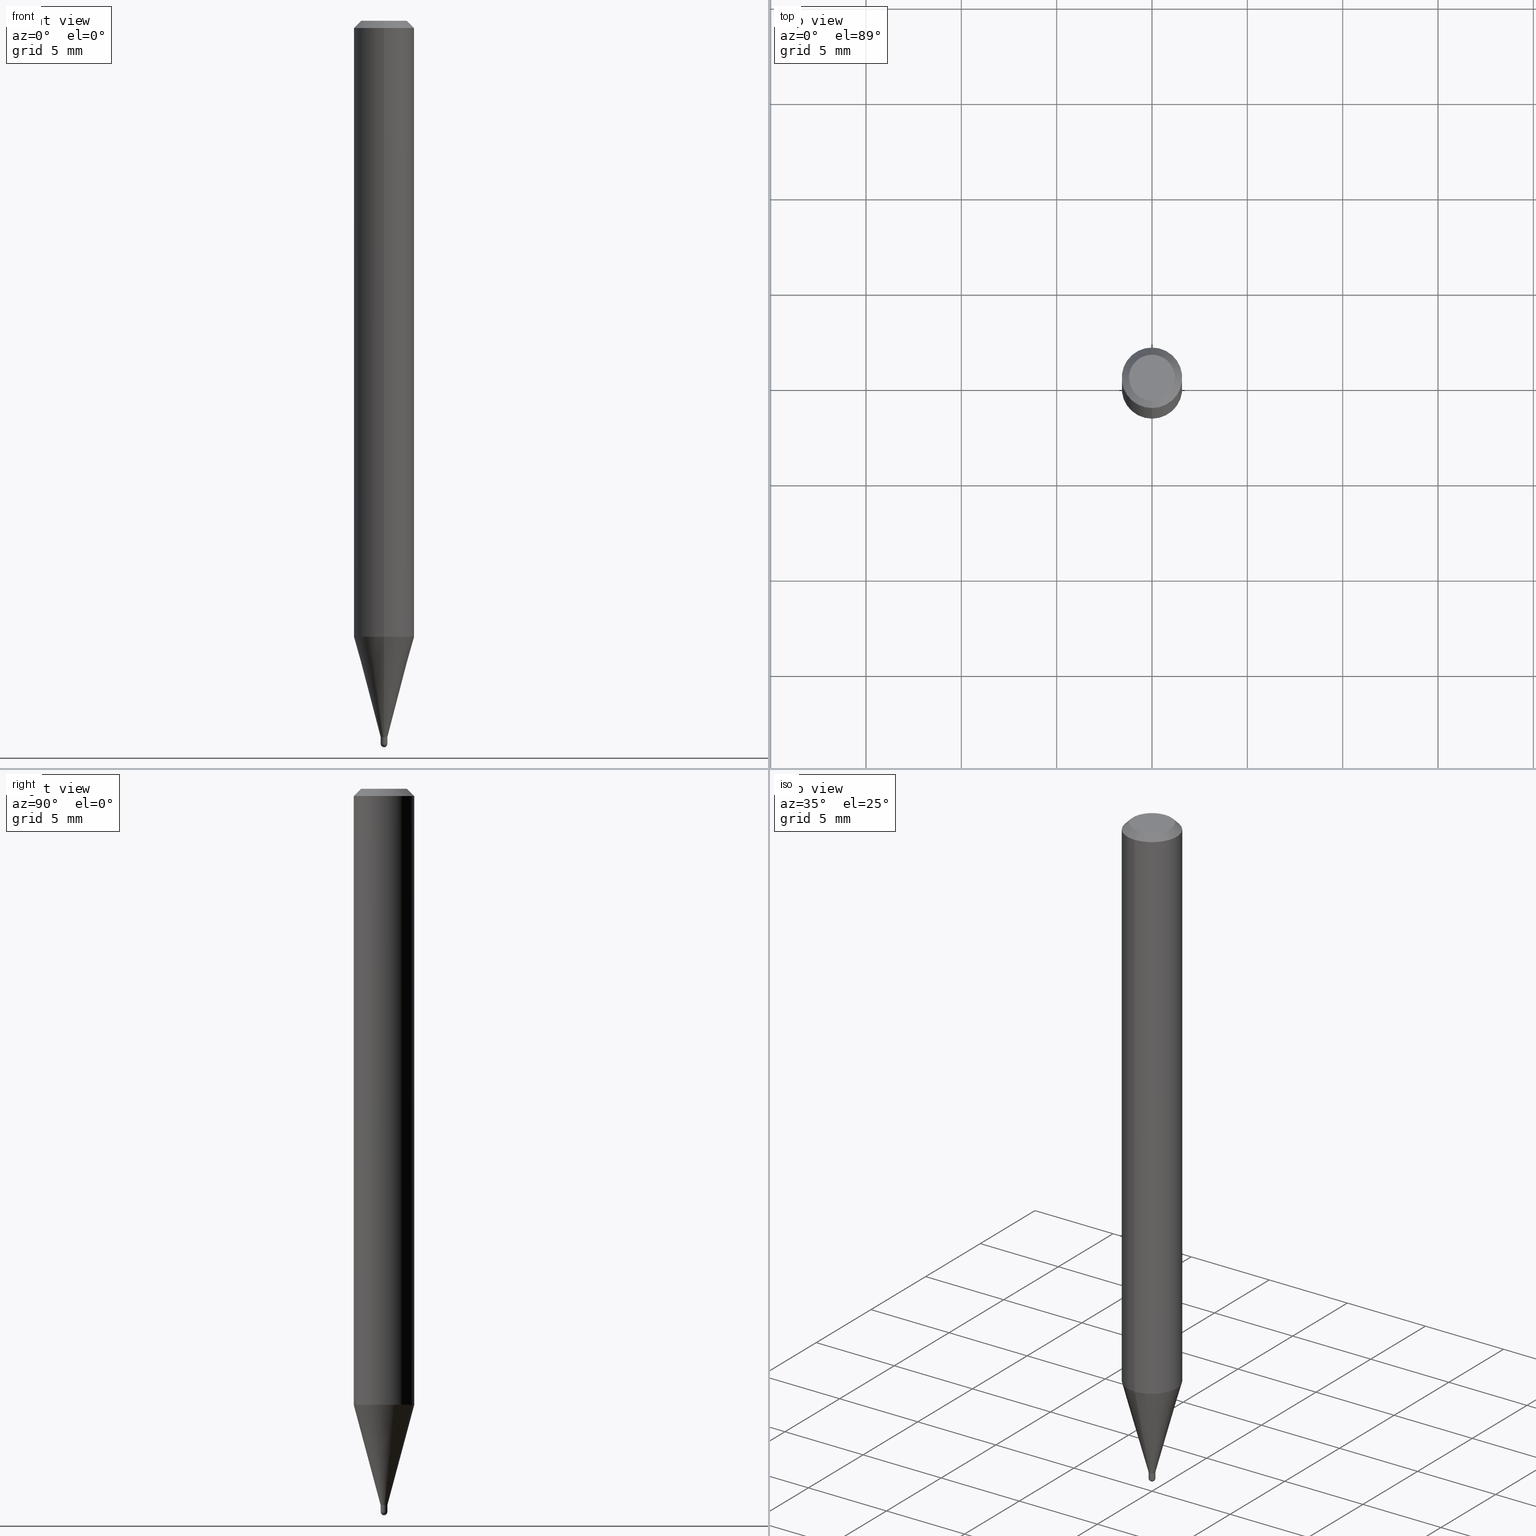
[diagram: canonical four-view strip — front | top / right | iso, engineering-drawing reading convention]
A machine part, canonical four-view strip (front | top / right | iso — engineering-drawing reading convention). The complete STEP part file that produces these views, byte-faithful:
ISO-10303-21;
HEADER;
FILE_DESCRIPTION (( 'STEP AP203' ),
    '1' );
FILE_NAME ('04326.STEP',
    '2024-03-08T18:38:34',
    ( '' ),
    ( '' ),
    'SwSTEP 2.0',
    'SolidWorks 2023',
    '' );
FILE_SCHEMA (( 'CONFIG_CONTROL_DESIGN' ));
ENDSEC;

DATA;
#1 = CARTESIAN_POINT ( 'NONE',  ( -0.007000000000000001013, -5.138603278017708231E-15, -1.479000000000000092 ) ) ;
#2 = EDGE_LOOP ( 'NONE', ( #139, #339 ) ) ;
#3 = CIRCLE ( 'NONE', #455, 0.007000000000000001013 ) ;
#4 = DIRECTION ( 'NONE',  ( -2.445468806185136597E-29, 3.491481338843145583E-15, 1.000000000000000000 ) ) ;
#5 = CC_DESIGN_APPROVAL ( #179, ( #175 ) ) ;
#6 = CYLINDRICAL_SURFACE ( 'NONE', #239, 0.06250000000000000000 ) ;
#7 = CARTESIAN_POINT ( 'NONE',  ( 4.973799150324343723E-17, 0.006999999999994775159, -1.493000000000000105 ) ) ;
#8 = EDGE_CURVE ( 'NONE', #12, #90, #495, .T. ) ;
#9 = AXIS2_PLACEMENT_3D ( 'NONE', #489, #101, #377 ) ;
#10 = DIRECTION ( 'NONE',  ( 6.982962677686265922E-15, 1.000000000000000000, -3.483106191921935554E-15 ) ) ;
#11 = ORIENTED_EDGE ( 'NONE', *, *, #36, .F. ) ;
#12 = VERTEX_POINT ( 'NONE', #454 ) ;
#13 = DIRECTION ( 'NONE',  ( -2.445468806185136597E-29, 3.491481338843145583E-15, 1.000000000000000000 ) ) ;
#14 = FACE_OUTER_BOUND ( 'NONE', #161, .T. ) ;
#15 = ORIENTED_EDGE ( 'NONE', *, *, #132, .F. ) ;
#16 = CARTESIAN_POINT ( 'NONE',  ( -4.364351673553606080E-16, -0.06250000000000445477, -1.271871180179934280 ) ) ;
#17 = SECURITY_CLASSIFICATION ( '', '', #118 ) ;
#18 = EDGE_LOOP ( 'NONE', ( #244, #483, #212, #373 ) ) ;
#19 = ORIENTED_EDGE ( 'NONE', *, *, #474, .T. ) ;
#20 = ORIENTED_EDGE ( 'NONE', *, *, #113, .T. ) ;
#21 = ORIENTED_EDGE ( 'NONE', *, *, #474, .F. ) ;
#22 = DIRECTION ( 'NONE',  ( 1.000000000000000000, 0.000000000000000000, 0.000000000000000000 ) ) ;
#23 = ADVANCED_FACE ( 'NONE', ( #332 ), #251, .T. ) ;
#24 = DIRECTION ( 'NONE',  ( 1.839019923739649225E-15, 0.2588190451025318417, 0.9659258262890653146 ) ) ;
#25 = CIRCLE ( 'NONE', #190, 0.007000000000000001013 ) ;
#26 = FACE_OUTER_BOUND ( 'NONE', #488, .T. ) ;
#27 = CARTESIAN_POINT ( 'NONE',  ( 3.668226029008381619E-31, -5.237189329111617148E-17, -0.01500000000000006710 ) ) ;
#28 = EDGE_CURVE ( 'NONE', #330, #40, #31, .T. ) ;
#29 = LINE ( 'NONE', #117, #110 ) ;
#30 = DATE_AND_TIME ( #421, #146 ) ;
#31 = CIRCLE ( 'NONE', #199, 0.06250000000000000000 ) ;
#32 = CIRCLE ( 'NONE', #102, 0.007000000000000197904 ) ;
#33 = AXIS2_PLACEMENT_3D ( 'NONE', #221, #448, #22 ) ;
#34 = CARTESIAN_POINT ( 'NONE',  ( -4.287811248607203282E-16, -0.06250000000000005551, -0.01499999999999984852 ) ) ;
#35 = APPLICATION_CONTEXT ( 'configuration controlled 3d designs of mechanical parts and assemblies' ) ;
#36 = EDGE_CURVE ( 'NONE', #336, #51, #433, .T. ) ;
#37 = VERTEX_POINT ( 'NONE', #379 ) ;
#38 = LINE ( 'NONE', #480, #158 ) ;
#39 = DATE_TIME_ROLE ( 'creation_date' ) ;
#40 = VERTEX_POINT ( 'NONE', #16 ) ;
#41 = CARTESIAN_POINT ( 'NONE',  ( 3.651084927634409598E-29, -5.212781638892817127E-15, -1.493000000000000105 ) ) ;
#42 = VECTOR ( 'NONE', #224, 39.37007874015748143 ) ;
#43 = CYLINDRICAL_SURFACE ( 'NONE', #491, 0.007000000000000001013 ) ;
#44 = LINE ( 'NONE', #477, #355 ) ;
#45 = UNCERTAINTY_MEASURE_WITH_UNIT (LENGTH_MEASURE( 1.000000000000000082E-05 ), #138, 'distance_accuracy_value', 'NONE');
#46 = DIRECTION ( 'NONE',  ( -2.445484019338910371E-29, 3.491459552741062700E-15, 1.000000000000000000 ) ) ;
#47 = EDGE_LOOP ( 'NONE', ( #19, #476, #87, #333, #216 ) ) ;
#48 = CIRCLE ( 'NONE', #274, 0.007000000000000197904 ) ;
#49 = VERTEX_POINT ( 'NONE', #257 ) ;
#50 = DIRECTION ( 'NONE',  ( -2.445484019338910371E-29, 3.491459552741062700E-15, 1.000000000000000000 ) ) ;
#51 = VERTEX_POINT ( 'NONE', #178 ) ;
#52 = ADVANCED_FACE ( 'NONE', ( #293 ), #211, .T. ) ;
#53 = CARTESIAN_POINT ( 'NONE',  ( 4.796163466384362276E-17, 0.006499999999994836297, -1.479000000000000314 ) ) ;
#54 = DIRECTION ( 'NONE',  ( -6.982962677686266711E-15, -1.000000000000000000, 3.491459552741063094E-15 ) ) ;
#55 = PERSON_AND_ORGANIZATION ( #500, #83 ) ;
#56 = ORIENTED_EDGE ( 'NONE', *, *, #8, .F. ) ;
#57 = DIRECTION ( 'NONE',  ( 4.937700262164548042E-15, 0.7071067811865451302, -0.7071067811865499042 ) ) ;
#58 = CONICAL_SURFACE ( 'NONE', #482, 0.007000000000000197904, 0.2617993877991574014 ) ;
#59 = DATE_AND_TIME ( #149, #218 ) ;
#60 = EDGE_LOOP ( 'NONE', ( #181, #381, #384, #439 ) ) ;
#61 = DIRECTION ( 'NONE',  ( 1.000000000000000000, -6.982962677686266711E-15, 4.876176775795935232E-29 ) ) ;
#62 = ORIENTED_EDGE ( 'NONE', *, *, #230, .T. ) ;
#63 = FACE_OUTER_BOUND ( 'NONE', #416, .T. ) ;
#64 = CIRCLE ( 'NONE', #109, 0.06250000000000000000 ) ;
#65 = AXIS2_PLACEMENT_3D ( 'NONE', #106, #188, #505 ) ;
#66 = EDGE_CURVE ( 'NONE', #330, #90, #137, .T. ) ;
#67 = DIRECTION ( 'NONE',  ( -2.445484019338910371E-29, 3.491459552741062700E-15, 1.000000000000000000 ) ) ;
#68 = APPROVAL ( #390, 'UNSPECIFIED' ) ;
#69 = CARTESIAN_POINT ( 'NONE',  ( 3.650486311231983634E-29, -5.213638891652220506E-15, -1.493000000000000105 ) ) ;
#70 = DATE_TIME_ROLE ( 'classification_date' ) ;
#71 = CARTESIAN_POINT ( 'NONE',  ( -3.773273898774340269E-16, -0.04749999999999999362, 1.003430598629553348E-16 ) ) ;
#72 = ADVANCED_FACE ( 'NONE', ( #97 ), #170, .F. ) ;
#73 = VECTOR ( 'NONE', #391, 39.37007874015748143 ) ;
#74 = VERTEX_POINT ( 'NONE', #254 ) ;
#75 = CARTESIAN_POINT ( 'NONE',  ( 4.973799150324458355E-17, 0.006999999999995034500, -1.479000000000000092 ) ) ;
#76 = PERSON_AND_ORGANIZATION_ROLE ( 'classification_officer' ) ;
#77 = EDGE_CURVE ( 'NONE', #441, #74, #95, .T. ) ;
#78 = ORIENTED_EDGE ( 'NONE', *, *, #403, .T. ) ;
#79 = DIRECTION ( 'NONE',  ( -6.982962677686265922E-15, -1.000000000000000000, 3.491459552741062700E-15 ) ) ;
#80 = DIRECTION ( 'NONE',  ( -2.445484019338910371E-29, 3.491459552741062700E-15, 1.000000000000000000 ) ) ;
#81 = AXIS2_PLACEMENT_3D ( 'NONE', #168, #383, #447 ) ;
#82 = AXIS2_PLACEMENT_3D ( 'NONE', #253, #461, #105 ) ;
#83 = ORGANIZATION ( 'UNSPECIFIED', 'UNSPECIFIED', '' ) ;
#84 = CARTESIAN_POINT ( 'NONE',  ( 0.000000000000000000, 0.000000000000000000, 0.000000000000000000 ) ) ;
#85 = ORIENTED_EDGE ( 'NONE', *, *, #267, .F. ) ;
#86 = FACE_OUTER_BOUND ( 'NONE', #302, .T. ) ;
#87 = ORIENTED_EDGE ( 'NONE', *, *, #424, .F. ) ;
#88 = DIRECTION ( 'NONE',  ( -2.445484019338910371E-29, 3.491459552741062700E-15, 1.000000000000000000 ) ) ;
#89 = EDGE_CURVE ( 'NONE', #40, #330, #303, .T. ) ;
#90 = VERTEX_POINT ( 'NONE', #411 ) ;
#91 = AXIS2_PLACEMENT_3D ( 'NONE', #93, #409, #248 ) ;
#92 = CONICAL_SURFACE ( 'NONE', #65, 0.06250000000000000000, 0.7853981633974483900 ) ;
#93 = CARTESIAN_POINT ( 'NONE',  ( 3.616870864602249204E-29, -5.163868678504032848E-15, -1.479000000000000314 ) ) ;
#94 = ORIENTED_EDGE ( 'NONE', *, *, #497, .F. ) ;
#95 = LINE ( 'NONE', #306, #100 ) ;
#96 = VERTEX_POINT ( 'NONE', #499 ) ;
#97 = FACE_OUTER_BOUND ( 'NONE', #18, .T. ) ;
#98 = COORDINATED_UNIVERSAL_TIME_OFFSET ( 5, 0, .BEHIND. ) ;
#99 = ORIENTED_EDGE ( 'NONE', *, *, #450, .F. ) ;
#100 = VECTOR ( 'NONE', #340, 39.37007874015748143 ) ;
#101 = DIRECTION ( 'NONE',  ( -2.445484019338910371E-29, 3.491459552741062700E-15, 1.000000000000000000 ) ) ;
#102 = AXIS2_PLACEMENT_3D ( 'NONE', #440, #88, #238 ) ;
#103 = LINE ( 'NONE', #131, #345 ) ;
#104 = MECHANICAL_CONTEXT ( 'NONE', #363, 'mechanical' ) ;
#105 = DIRECTION ( 'NONE',  ( -6.982962677686266711E-15, -1.000000000000000000, 0.000000000000000000 ) ) ;
#106 = CARTESIAN_POINT ( 'NONE',  ( 3.668226029008381619E-31, -5.237189329111617148E-17, -0.01500000000000006710 ) ) ;
#107 = DIRECTION ( 'NONE',  ( -2.445484019338910091E-29, 3.491459552741062700E-15, 1.000000000000000000 ) ) ;
#108 = VECTOR ( 'NONE', #487, 39.37007874015748854 ) ;
#109 = AXIS2_PLACEMENT_3D ( 'NONE', #318, #155, #183 ) ;
#110 = VECTOR ( 'NONE', #420, 39.37007874015748143 ) ;
#111 = DIRECTION ( 'NONE',  ( -6.982962677686265922E-15, -1.000000000000000000, 3.491459552741062700E-15 ) ) ;
#112 = DATE_AND_TIME ( #277, #478 ) ;
#113 = EDGE_CURVE ( 'NONE', #451, #40, #140, .T. ) ;
#114 = DIRECTION ( 'NONE',  ( 6.982962677686265922E-15, 1.000000000000000000, -3.491459552741062700E-15 ) ) ;
#115 = APPROVAL_DATE_TIME ( #30, #68 ) ;
#116 = EDGE_LOOP ( 'NONE', ( #210, #456, #285, #21 ) ) ;
#117 = CARTESIAN_POINT ( 'NONE',  ( -4.364351673553916201E-16, -0.06250000000000000000, 2.182162220463164187E-16 ) ) ;
#118 = SECURITY_CLASSIFICATION_LEVEL ( 'unclassified' ) ;
#119 = CIRCLE ( 'NONE', #247, 0.007000000000000197904 ) ;
#120 = ORIENTED_EDGE ( 'NONE', *, *, #234, .T. ) ;
#121 = DIRECTION ( 'NONE',  ( -6.982962677686266711E-15, -1.000000000000000000, 3.491459552741063094E-15 ) ) ;
#122 = APPROVAL_DATE_TIME ( #465, #179 ) ;
#123 = VERTEX_POINT ( 'NONE', #458 ) ;
#124 = CARTESIAN_POINT ( 'NONE',  ( 3.651084927634409598E-29, -5.212781638892817127E-15, -1.493000000000000105 ) ) ;
#125 = DIRECTION ( 'NONE',  ( -2.445484019338910371E-29, 3.491459552741062700E-15, 1.000000000000000000 ) ) ;
#126 = AXIS2_PLACEMENT_3D ( 'NONE', #226, #388, #228 ) ;
#127 = DIRECTION ( 'NONE',  ( -2.445484019338910651E-29, 3.491459552741062700E-15, 1.000000000000000000 ) ) ;
#128 = ORIENTED_EDGE ( 'NONE', *, *, #89, .T. ) ;
#129 = CARTESIAN_POINT ( 'NONE',  ( 1.601823063224064103E-45, -2.286950309904903287E-31, -6.550126889224514052E-17 ) ) ;
#130 = ORIENTED_EDGE ( 'NONE', *, *, #28, .T. ) ;
#131 = CARTESIAN_POINT ( 'NONE',  ( -0.007000000000000001013, 4.973799150320702021E-17, -3.443254563178434303E-31 ) ) ;
#132 = EDGE_CURVE ( 'NONE', #206, #336, #103, .T. ) ;
#133 = ORIENTED_EDGE ( 'NONE', *, *, #403, .F. ) ;
#134 = AXIS2_PLACEMENT_3D ( 'NONE', #124, #4, #159 ) ;
#135 = PLANE ( 'NONE',  #245 ) ;
#136 = ORIENTED_EDGE ( 'NONE', *, *, #374, .T. ) ;
#137 = LINE ( 'NONE', #343, #143 ) ;
#138 =( CONVERSION_BASED_UNIT ( 'INCH', #263 ) LENGTH_UNIT ( ) NAMED_UNIT ( #200 ) );
#139 = ORIENTED_EDGE ( 'NONE', *, *, #424, .T. ) ;
#140 = LINE ( 'NONE', #301, #108 ) ;
#141 = APPROVAL_DATE_TIME ( #59, #315 ) ;
#142 = ORIENTED_EDGE ( 'NONE', *, *, #66, .T. ) ;
#143 = VECTOR ( 'NONE', #335, 39.37007874015748143 ) ;
#144 = CARTESIAN_POINT ( 'NONE',  ( 3.110340645787750405E-29, -4.440686781895283064E-15, -1.271871180179934724 ) ) ;
#145 = CONICAL_SURFACE ( 'NONE', #126, 0.006500000000000000569, 0.7853981633974739252 ) ;
#146 = LOCAL_TIME ( 13, 38, 34.00000000000000000, #152 ) ;
#147 =( LENGTH_UNIT ( ) NAMED_UNIT ( * ) SI_UNIT ( $, .METRE. ) );
#148 = CARTESIAN_POINT ( 'NONE',  ( 0.007000000000000001013, -4.888073874380387486E-17, 3.413323743057155353E-31 ) ) ;
#149 = CALENDAR_DATE ( 2024, 8, 3 ) ;
#150 = PLANE ( 'NONE',  #428 ) ;
#151 = CC_DESIGN_DATE_AND_TIME_ASSIGNMENT ( #112, #70, ( #17 ) ) ;
#152 = COORDINATED_UNIVERSAL_TIME_OFFSET ( 5, 0, .BEHIND. ) ;
#153 = DIRECTION ( 'NONE',  ( 1.000000000000000000, -7.105427357601001070E-15, 4.926315508542082329E-29 ) ) ;
#154 = AXIS2_PLACEMENT_3D ( 'NONE', #129, #405, #329 ) ;
#155 = DIRECTION ( 'NONE',  ( -2.445484019338910371E-29, 3.491459552741062700E-15, 1.000000000000000000 ) ) ;
#156 = ADVANCED_FACE ( 'NONE', ( #442 ), #320, .T. ) ;
#157 = CARTESIAN_POINT ( 'NONE',  ( 3.651084927634409598E-29, -5.212781638892817127E-15, -1.493000000000000105 ) ) ;
#158 = VECTOR ( 'NONE', #399, 39.37007874015748143 ) ;
#159 = DIRECTION ( 'NONE',  ( 1.000000000000000000, -6.982962677686332186E-15, 0.000000000000000000 ) ) ;
#160 = ADVANCED_FACE ( 'NONE', ( #14 ), #135, .F. ) ;
#161 = EDGE_LOOP ( 'NONE', ( #249, #246 ) ) ;
#162 = DIRECTION ( 'NONE',  ( -2.445484019338910371E-29, 3.491459552741062700E-15, 1.000000000000000000 ) ) ;
#163 = FACE_OUTER_BOUND ( 'NONE', #169, .T. ) ;
#164 = VECTOR ( 'NONE', #186, 39.37007874015748143 ) ;
#165 = EDGE_CURVE ( 'NONE', #441, #330, #512, .T. ) ;
#166 = FACE_OUTER_BOUND ( 'NONE', #2, .T. ) ;
#167 = ORIENTED_EDGE ( 'NONE', *, *, #176, .T. ) ;
#168 = CARTESIAN_POINT ( 'NONE',  ( 3.616848364347817323E-29, -5.163900900149012660E-15, -1.479000000000000092 ) ) ;
#169 = EDGE_LOOP ( 'NONE', ( #327, #365, #378, #99 ) ) ;
#170 = CYLINDRICAL_SURFACE ( 'NONE', #443, 0.007000000000000197904 ) ;
#171 = ORIENTED_EDGE ( 'NONE', *, *, #77, .F. ) ;
#172 = AXIS2_PLACEMENT_3D ( 'NONE', #472, #67, #462 ) ;
#173 = LINE ( 'NONE', #304, #42 ) ;
#174 = DIRECTION ( 'NONE',  ( -2.445484019338910371E-29, 3.491459552741062700E-15, 1.000000000000000000 ) ) ;
#175 = PRODUCT_DEFINITION_FORMATION_WITH_SPECIFIED_SOURCE ( 'ANY', '', #446, .NOT_KNOWN. ) ;
#176 = EDGE_CURVE ( 'NONE', #90, #123, #64, .T. ) ;
#177 = ORIENTED_EDGE ( 'NONE', *, *, #386, .T. ) ;
#178 = CARTESIAN_POINT ( 'NONE',  ( 0.007000000000000001013, -5.212781638892817127E-15, -1.479000000000000092 ) ) ;
#179 = APPROVAL ( #275, 'UNSPECIFIED' ) ;
#180 = VERTEX_POINT ( 'NONE', #316 ) ;
#181 = ORIENTED_EDGE ( 'NONE', *, *, #463, .T. ) ;
#182 = EDGE_CURVE ( 'NONE', #37, #397, #367, .T. ) ;
#183 = DIRECTION ( 'NONE',  ( -6.982962677686265922E-15, -1.000000000000000000, 3.483106191921935554E-15 ) ) ;
#184 = AXIS2_PLACEMENT_3D ( 'NONE', #319, #236, #324 ) ;
#185 = LOCAL_TIME ( 13, 38, 34.00000000000000000, #195 ) ;
#186 = DIRECTION ( 'NONE',  ( -2.445468806185136877E-29, 3.491481338843145188E-15, 1.000000000000000000 ) ) ;
#187 = DIRECTION ( 'NONE',  ( 2.445484019338910091E-29, -3.491459552741062700E-15, -1.000000000000000000 ) ) ;
#188 = DIRECTION ( 'NONE',  ( 2.445484019338910371E-29, -3.491459552741062700E-15, -1.000000000000000000 ) ) ;
#189 = CLOSED_SHELL ( 'NONE', ( #52, #398, #352, #205, #484 ) ) ;
#190 = AXIS2_PLACEMENT_3D ( 'NONE', #284, #485, #322 ) ;
#191 = CC_DESIGN_APPROVAL ( #68, ( #17 ) ) ;
#192 = FACE_OUTER_BOUND ( 'NONE', #412, .T. ) ;
#193 = CC_DESIGN_DATE_AND_TIME_ASSIGNMENT ( #310, #39, ( #287 ) ) ;
#194 = CARTESIAN_POINT ( 'NONE',  ( 4.888073874384003304E-17, 0.006999999999994836741, -1.479000000000000092 ) ) ;
#195 = COORDINATED_UNIVERSAL_TIME_OFFSET ( 5, 0, .BEHIND. ) ;
#196 = ADVANCED_FACE ( 'NONE', ( #192 ), #58, .T. ) ;
#197 = CARTESIAN_POINT ( 'NONE',  ( -4.888073874376907870E-17, -0.007000000000005362176, -1.479000000000000092 ) ) ;
#198 = PERSON_AND_ORGANIZATION ( #500, #83 ) ;
#199 = AXIS2_PLACEMENT_3D ( 'NONE', #387, #50, #220 ) ;
#200 = DIMENSIONAL_EXPONENTS ( 1.000000000000000000, 0.000000000000000000, 0.000000000000000000, 0.000000000000000000, 0.000000000000000000, 0.000000000000000000, 0.000000000000000000 ) ;
#201 = AXIS2_PLACEMENT_3D ( 'NONE', #475, #419, #272 ) ;
#202 = CARTESIAN_POINT ( 'NONE',  ( 0.000000000000000000, 0.000000000000000000, 0.000000000000000000 ) ) ;
#203 = CC_DESIGN_PERSON_AND_ORGANIZATION_ASSIGNMENT ( #295, #298, ( #446 ) ) ;
#204 = DIRECTION ( 'NONE',  ( -6.982962677686266711E-15, -1.000000000000000000, 0.000000000000000000 ) ) ;
#205 = ADVANCED_FACE ( 'NONE', ( #264 ), #351, .T. ) ;
#206 = VERTEX_POINT ( 'NONE', #504 ) ;
#207 = DIRECTION ( 'NONE',  ( 1.000000000000000000, -6.982962677686332186E-15, 0.000000000000000000 ) ) ;
#208 = EDGE_CURVE ( 'NONE', #40, #123, #29, .T. ) ;
#209 = ORIENTED_EDGE ( 'NONE', *, *, #258, .F. ) ;
#210 = ORIENTED_EDGE ( 'NONE', *, *, #182, .F. ) ;
#211 = CYLINDRICAL_SURFACE ( 'NONE', #273, 0.007000000000000001013 ) ;
#212 = ORIENTED_EDGE ( 'NONE', *, *, #258, .T. ) ;
#213 = DIRECTION ( 'NONE',  ( 1.000000000000000000, -6.982962677686332186E-15, 0.000000000000000000 ) ) ;
#214 = EDGE_CURVE ( 'NONE', #291, #123, #464, .T. ) ;
#215 = CARTESIAN_POINT ( 'NONE',  ( 3.316907271900976096E-16, 0.04749999999999999362, -1.985949632013230394E-16 ) ) ;
#216 = ORIENTED_EDGE ( 'NONE', *, *, #492, .T. ) ;
#217 = AXIS2_PLACEMENT_3D ( 'NONE', #27, #268, #10 ) ;
#218 = LOCAL_TIME ( 13, 38, 34.00000000000000000, #98 ) ;
#219 = DIRECTION ( 'NONE',  ( 1.000000000000000000, -6.982962677686266711E-15, 4.876176775795935232E-29 ) ) ;
#220 = DIRECTION ( 'NONE',  ( -6.982962677686265922E-15, -1.000000000000000000, 4.370956789862821150E-15 ) ) ;
#221 = CARTESIAN_POINT ( 'NONE',  ( 0.000000000000000000, 0.000000000000000000, 0.000000000000000000 ) ) ;
#222 = ORIENTED_EDGE ( 'NONE', *, *, #267, .T. ) ;
#223 = DIRECTION ( 'NONE',  ( -6.982962677686265922E-15, -1.000000000000000000, 4.370956789862821150E-15 ) ) ;
#224 = DIRECTION ( 'NONE',  ( -4.937700262164674260E-15, -0.7071067811865632269, 0.7071067811865319186 ) ) ;
#225 = CARTESIAN_POINT ( 'NONE',  ( 4.364351673553919652E-16, 0.06249999999999995143, -0.01500000000000028394 ) ) ;
#226 = CARTESIAN_POINT ( 'NONE',  ( 3.616870864602249204E-29, -5.163868678504032848E-15, -1.479000000000000314 ) ) ;
#227 = CIRCLE ( 'NONE', #134, 0.007000000000000001013 ) ;
#228 = DIRECTION ( 'NONE',  ( -6.982962677686265922E-15, -1.000000000000000000, 0.000000000000000000 ) ) ;
#229 = CARTESIAN_POINT ( 'NONE',  ( 3.616870864602248644E-29, -5.163868678504032059E-15, -1.479000000000000092 ) ) ;
#230 = EDGE_CURVE ( 'NONE', #206, #96, #400, .T. ) ;
#231 = DIRECTION ( 'NONE',  ( -2.445468806185136597E-29, 3.491481338843145583E-15, 1.000000000000000000 ) ) ;
#232 = EDGE_CURVE ( 'NONE', #49, #74, #468, .T. ) ;
#233 = DIRECTION ( 'NONE',  ( -2.445484019338910371E-29, 3.491459552741062700E-15, 1.000000000000000000 ) ) ;
#234 = EDGE_CURVE ( 'NONE', #498, #51, #429, .T. ) ;
#235 = EDGE_LOOP ( 'NONE', ( #449, #501, #78, #56 ) ) ;
#236 = DIRECTION ( 'NONE',  ( -1.000000000000000000, 6.982962677686265922E-15, -4.883557194083112340E-29 ) ) ;
#237 = EDGE_CURVE ( 'NONE', #291, #12, #393, .T. ) ;
#238 = DIRECTION ( 'NONE',  ( -6.982962677686266711E-15, -1.000000000000000000, 0.000000000000000000 ) ) ;
#239 = AXIS2_PLACEMENT_3D ( 'NONE', #281, #125, #79 ) ;
#240 = APPROVAL_PERSON_ORGANIZATION ( #55, #315, #414 ) ;
#241 = PLANE ( 'NONE',  #346 ) ;
#242 = ORIENTED_EDGE ( 'NONE', *, *, #165, .F. ) ;
#243 = DIRECTION ( 'NONE',  ( -2.445468806185136597E-29, 3.491481338843145583E-15, 1.000000000000000000 ) ) ;
#244 = ORIENTED_EDGE ( 'NONE', *, *, #359, .F. ) ;
#245 = AXIS2_PLACEMENT_3D ( 'NONE', #215, #187, #114 ) ;
#246 = ORIENTED_EDGE ( 'NONE', *, *, #237, .T. ) ;
#247 = AXIS2_PLACEMENT_3D ( 'NONE', #395, #80, #204 ) ;
#248 = DIRECTION ( 'NONE',  ( -6.982962677686265922E-15, -1.000000000000000000, 0.000000000000000000 ) ) ;
#249 = ORIENTED_EDGE ( 'NONE', *, *, #459, .T. ) ;
#250 = ADVANCED_FACE ( 'NONE', ( #313 ), #92, .T. ) ;
#251 = CYLINDRICAL_SURFACE ( 'NONE', #9, 0.06250000000000000000 ) ;
#252 = EDGE_LOOP ( 'NONE', ( #222, #279, #259, #94 ) ) ;
#253 = CARTESIAN_POINT ( 'NONE',  ( 3.616870864602248644E-29, -5.163868678504032059E-15, -1.479000000000000092 ) ) ;
#254 = CARTESIAN_POINT ( 'NONE',  ( 4.973799150324440482E-17, 0.006999999999995012816, -1.478500000000000147 ) ) ;
#255 = ORIENTED_EDGE ( 'NONE', *, *, #208, .F. ) ;
#256 = AXIS2_PLACEMENT_3D ( 'NONE', #308, #507, #347 ) ;
#257 = CARTESIAN_POINT ( 'NONE',  ( -4.888073874376924510E-17, -0.007000000000005382993, -1.478500000000000147 ) ) ;
#258 = EDGE_CURVE ( 'NONE', #74, #49, #48, .T. ) ;
#259 = ORIENTED_EDGE ( 'NONE', *, *, #232, .F. ) ;
#260 = ADVANCED_BREP_SHAPE_REPRESENTATION ( '04326', ( #353, #348, #33 ), #292 ) ;
#261 = PRODUCT_RELATED_PRODUCT_CATEGORY ( 'detail', '', ( #446 ) ) ;
#262 = DIRECTION ( 'NONE',  ( -2.445484019338910371E-29, 3.491459552741062700E-15, 1.000000000000000000 ) ) ;
#263 = LENGTH_MEASURE_WITH_UNIT ( LENGTH_MEASURE( 0.02539999999999999897 ), #147 );
#264 = FACE_OUTER_BOUND ( 'NONE', #116, .T. ) ;
#265 = CIRCLE ( 'NONE', #184, 0.006999999999999977594 ) ;
#266 = PERSON_AND_ORGANIZATION_ROLE ( 'creator' ) ;
#267 = EDGE_CURVE ( 'NONE', #180, #493, #372, .T. ) ;
#268 = DIRECTION ( 'NONE',  ( 2.445484019338910371E-29, -3.491459552741062700E-15, -1.000000000000000000 ) ) ;
#269 = DIRECTION ( 'NONE',  ( -2.445484019338910371E-29, 3.491459552741062700E-15, 1.000000000000000000 ) ) ;
#270 = CALENDAR_DATE ( 2024, 8, 3 ) ;
#271 = ORIENTED_EDGE ( 'NONE', *, *, #386, .F. ) ;
#272 = DIRECTION ( 'NONE',  ( -6.982962677686266711E-15, -1.000000000000000000, 0.000000000000000000 ) ) ;
#273 = AXIS2_PLACEMENT_3D ( 'NONE', #297, #338, #61 ) ;
#274 = AXIS2_PLACEMENT_3D ( 'NONE', #356, #262, #349 ) ;
#275 = APPROVAL_STATUS ( 'not_yet_approved' ) ;
#276 = CARTESIAN_POINT ( 'NONE',  ( 2.469136006766693000E-16, 0.006999999999995034500, -1.479000000000000092 ) ) ;
#277 = CALENDAR_DATE ( 2024, 8, 3 ) ;
#278 = CC_DESIGN_PERSON_AND_ORGANIZATION_ASSIGNMENT ( #358, #266, ( #175 ) ) ;
#279 = ORIENTED_EDGE ( 'NONE', *, *, #471, .T. ) ;
#280 = SPHERICAL_SURFACE ( 'NONE', #325, 0.006999999999999977594 ) ;
#281 = CARTESIAN_POINT ( 'NONE',  ( 0.000000000000000000, 0.000000000000000000, 0.000000000000000000 ) ) ;
#282 = AXIS2_PLACEMENT_3D ( 'NONE', #370, #366, #371 ) ;
#283 = ADVANCED_FACE ( 'NONE', ( #63 ), #145, .T. ) ;
#284 = CARTESIAN_POINT ( 'NONE',  ( 3.616848364347817323E-29, -5.163900900149012660E-15, -1.479000000000000092 ) ) ;
#285 = ORIENTED_EDGE ( 'NONE', *, *, #230, .F. ) ;
#286 = DIRECTION ( 'NONE',  ( 2.438088387897960049E-29, -3.491481338843145188E-15, -1.000000000000000000 ) ) ;
#287 = PRODUCT_DEFINITION ( 'UNKNOWN', '', #175, #437 ) ;
#288 = EDGE_LOOP ( 'NONE', ( #410, #130, #385, #417 ) ) ;
#289 = DIRECTION ( 'NONE',  ( -2.445468806185136877E-29, 3.491481338843145188E-15, 1.000000000000000000 ) ) ;
#290 = VECTOR ( 'NONE', #24, 39.37007874015748143 ) ;
#291 = VERTEX_POINT ( 'NONE', #71 ) ;
#292 =( GEOMETRIC_REPRESENTATION_CONTEXT ( 3 ) GLOBAL_UNCERTAINTY_ASSIGNED_CONTEXT ( ( #45 ) ) GLOBAL_UNIT_ASSIGNED_CONTEXT ( ( #138, #496, #341 ) ) REPRESENTATION_CONTEXT ( 'NONE', 'WORKASPACE' ) );
#293 = FACE_OUTER_BOUND ( 'NONE', #47, .T. ) ;
#294 = PRODUCT_DEFINITION_SHAPE ( 'NONE', 'NONE',  #287 ) ;
#295 = PERSON_AND_ORGANIZATION ( #500, #83 ) ;
#296 = ORIENTED_EDGE ( 'NONE', *, *, #232, .T. ) ;
#297 = CARTESIAN_POINT ( 'NONE',  ( 0.000000000000000000, 0.000000000000000000, 0.000000000000000000 ) ) ;
#298 = PERSON_AND_ORGANIZATION_ROLE ( 'design_owner' ) ;
#299 = ORIENTED_EDGE ( 'NONE', *, *, #214, .F. ) ;
#300 = ADVANCED_FACE ( 'NONE', ( #26 ), #150, .F. ) ;
#301 = CARTESIAN_POINT ( 'NONE',  ( -4.888073874376907870E-17, -0.007000000000005362176, -1.479000000000000092 ) ) ;
#302 = EDGE_LOOP ( 'NONE', ( #171, #342, #136, #296 ) ) ;
#303 = CIRCLE ( 'NONE', #427, 0.06250000000000000000 ) ;
#304 = CARTESIAN_POINT ( 'NONE',  ( -4.538925740492456163E-17, -0.006500000000005163973, -1.479000000000000314 ) ) ;
#305 = ADVANCED_FACE ( 'NONE', ( #389 ), #407, .T. ) ;
#306 = CARTESIAN_POINT ( 'NONE',  ( 4.973799150320841304E-17, 0.007000000000000197904, -2.444021686918813238E-17 ) ) ;
#307 = APPROVAL_STATUS ( 'not_yet_approved' ) ;
#308 = CARTESIAN_POINT ( 'NONE',  ( 3.650486311231983634E-29, -5.213638891652220506E-15, -1.493000000000000105 ) ) ;
#309 = CARTESIAN_POINT ( 'NONE',  ( 3.616870864602249204E-29, -5.163868678504032848E-15, -1.479000000000000314 ) ) ;
#310 = DATE_AND_TIME ( #270, #185 ) ;
#311 = EDGE_CURVE ( 'NONE', #37, #96, #265, .T. ) ;
#312 = CONICAL_SURFACE ( 'NONE', #82, 0.007000000000000197904, 0.2617993877991574014 ) ;
#313 = FACE_OUTER_BOUND ( 'NONE', #235, .T. ) ;
#314 = PERSON_AND_ORGANIZATION_ROLE ( 'creator' ) ;
#315 = APPROVAL ( #307, 'UNSPECIFIED' ) ;
#316 = CARTESIAN_POINT ( 'NONE',  ( -4.538925740492456163E-17, -0.006500000000005163973, -1.479000000000000314 ) ) ;
#317 = COORDINATED_UNIVERSAL_TIME_OFFSET ( 5, 0, .BEHIND. ) ;
#318 = CARTESIAN_POINT ( 'NONE',  ( 3.668226029008381619E-31, -5.237189329111617148E-17, -0.01500000000000006710 ) ) ;
#319 = CARTESIAN_POINT ( 'NONE',  ( 3.650486311231983634E-29, -5.213638891652220506E-15, -1.493000000000000105 ) ) ;
#320 = CONICAL_SURFACE ( 'NONE', #91, 0.006500000000000000569, 0.7853981633974739252 ) ;
#321 = AXIS2_PLACEMENT_3D ( 'NONE', #41, #243, #207 ) ;
#322 = DIRECTION ( 'NONE',  ( 1.000000000000000000, -6.982962677686332186E-15, 0.000000000000000000 ) ) ;
#323 = DIRECTION ( 'NONE',  ( 1.000000000000000000, -6.982962677686265922E-15, 4.883557194083112340E-29 ) ) ;
#324 = DIRECTION ( 'NONE',  ( -6.982962677686265922E-15, -1.000000000000000000, 0.000000000000000000 ) ) ;
#325 = AXIS2_PLACEMENT_3D ( 'NONE', #438, #323, #396 ) ;
#326 = CC_DESIGN_APPROVAL ( #315, ( #287 ) ) ;
#327 = ORIENTED_EDGE ( 'NONE', *, *, #311, .F. ) ;
#328 = CC_DESIGN_PERSON_AND_ORGANIZATION_ASSIGNMENT ( #460, #314, ( #287 ) ) ;
#329 = DIRECTION ( 'NONE',  ( -6.982962677686266711E-15, -1.000000000000000000, 3.491459552741063094E-15 ) ) ;
#330 = VERTEX_POINT ( 'NONE', #402 ) ;
#331 = ADVANCED_FACE ( 'NONE', ( #431 ), #6, .T. ) ;
#332 = FACE_OUTER_BOUND ( 'NONE', #288, .T. ) ;
#333 = ORIENTED_EDGE ( 'NONE', *, *, #234, .F. ) ;
#334 = CARTESIAN_POINT ( 'NONE',  ( 0.007000000000000001013, -5.237222008264718177E-15, -1.493000000000000105 ) ) ;
#335 = DIRECTION ( 'NONE',  ( -2.445484019338910651E-29, 3.491459552741062700E-15, 1.000000000000000000 ) ) ;
#336 = VERTEX_POINT ( 'NONE', #1 ) ;
#337 = CIRCLE ( 'NONE', #154, 0.04749999999999999362 ) ;
#338 = DIRECTION ( 'NONE',  ( -2.445468806185136597E-29, 3.491481338843145583E-15, 1.000000000000000000 ) ) ;
#339 = ORIENTED_EDGE ( 'NONE', *, *, #36, .T. ) ;
#340 = DIRECTION ( 'NONE',  ( -2.445484019338910651E-29, 3.491459552741062700E-15, 1.000000000000000000 ) ) ;
#341 =( NAMED_UNIT ( * ) SI_UNIT ( $, .STERADIAN. ) SOLID_ANGLE_UNIT ( ) );
#342 = ORIENTED_EDGE ( 'NONE', *, *, #463, .F. ) ;
#343 = CARTESIAN_POINT ( 'NONE',  ( 4.440892098500625669E-16, 0.06250000000000000000, -2.182162220463164187E-16 ) ) ;
#344 = APPLICATION_PROTOCOL_DEFINITION ( 'international standard', 'config_control_design', 1994, #363 ) ;
#345 = VECTOR ( 'NONE', #289, 39.37007874015748143 ) ;
#346 = AXIS2_PLACEMENT_3D ( 'NONE', #194, #286, #362 ) ;
#347 = DIRECTION ( 'NONE',  ( -6.982962677686265922E-15, -1.000000000000000000, 0.000000000000000000 ) ) ;
#348 = MANIFOLD_SOLID_BREP ( 'Body-Move/Copy2[2]', #354 ) ;
#349 = DIRECTION ( 'NONE',  ( -6.982962677686266711E-15, -1.000000000000000000, 0.000000000000000000 ) ) ;
#350 = ADVANCED_FACE ( 'NONE', ( #86 ), #434, .F. ) ;
#351 = SPHERICAL_SURFACE ( 'NONE', #256, 0.006999999999999977594 ) ;
#352 = ADVANCED_FACE ( 'NONE', ( #166 ), #241, .F. ) ;
#353 = MANIFOLD_SOLID_BREP ( 'Body-Move/Copy2[1]', #189 ) ;
#354 = CLOSED_SHELL ( 'NONE', ( #72, #156, #250, #331, #508, #196, #23, #305, #160, #300, #283, #350 ) ) ;
#355 = VECTOR ( 'NONE', #127, 39.37007874015748143 ) ;
#356 = CARTESIAN_POINT ( 'NONE',  ( 3.615648122592578753E-29, -5.162122948727661841E-15, -1.478500000000000147 ) ) ;
#357 = APPROVAL_PERSON_ORGANIZATION ( #392, #179, #364 ) ;
#358 = PERSON_AND_ORGANIZATION ( #500, #83 ) ;
#359 = EDGE_CURVE ( 'NONE', #441, #451, #119, .T. ) ;
#360 = DIRECTION ( 'NONE',  ( -6.982962677686266711E-15, -1.000000000000000000, 0.000000000000000000 ) ) ;
#361 = COORDINATED_UNIVERSAL_TIME_OFFSET ( 5, 0, .BEHIND. ) ;
#362 = DIRECTION ( 'NONE',  ( -1.000000000000000000, 6.982962677686265922E-15, -4.876176775795935793E-29 ) ) ;
#363 = APPLICATION_CONTEXT ( 'configuration controlled 3d designs of mechanical parts and assemblies' ) ;
#364 = APPROVAL_ROLE ( '' ) ;
#365 = ORIENTED_EDGE ( 'NONE', *, *, #182, .T. ) ;
#366 = DIRECTION ( 'NONE',  ( -2.445484019338910371E-29, 3.491459552741062700E-15, 1.000000000000000000 ) ) ;
#367 = CIRCLE ( 'NONE', #490, 0.006999999999999977594 ) ;
#368 = CIRCLE ( 'NONE', #282, 0.006500000000000000569 ) ;
#369 = DIRECTION ( 'NONE',  ( -2.445468806185136597E-29, 3.491481338843145583E-15, 1.000000000000000000 ) ) ;
#370 = CARTESIAN_POINT ( 'NONE',  ( 3.616870864602249204E-29, -5.163868678504032848E-15, -1.479000000000000314 ) ) ;
#371 = DIRECTION ( 'NONE',  ( -6.982962677686265922E-15, -1.000000000000000000, 0.000000000000000000 ) ) ;
#372 = CIRCLE ( 'NONE', #467, 0.006500000000000000569 ) ;
#373 = ORIENTED_EDGE ( 'NONE', *, *, #374, .F. ) ;
#374 = EDGE_CURVE ( 'NONE', #451, #49, #44, .T. ) ;
#375 = ORIENTED_EDGE ( 'NONE', *, *, #28, .F. ) ;
#376 = CC_DESIGN_PERSON_AND_ORGANIZATION_ASSIGNMENT ( #430, #76, ( #17 ) ) ;
#377 = DIRECTION ( 'NONE',  ( -6.982962677686265922E-15, -1.000000000000000000, 3.491459552741062700E-15 ) ) ;
#378 = ORIENTED_EDGE ( 'NONE', *, *, #492, .F. ) ;
#379 = CARTESIAN_POINT ( 'NONE',  ( 3.667305284674066789E-29, -5.238507887403823640E-15, -1.500000000000000222 ) ) ;
#380 = CIRCLE ( 'NONE', #321, 0.007000000000000001013 ) ;
#381 = ORIENTED_EDGE ( 'NONE', *, *, #165, .T. ) ;
#382 = CC_DESIGN_SECURITY_CLASSIFICATION ( #17, ( #175 ) ) ;
#383 = DIRECTION ( 'NONE',  ( -2.445468806185136597E-29, 3.491481338843145583E-15, 1.000000000000000000 ) ) ;
#384 = ORIENTED_EDGE ( 'NONE', *, *, #89, .F. ) ;
#385 = ORIENTED_EDGE ( 'NONE', *, *, #208, .T. ) ;
#386 = EDGE_CURVE ( 'NONE', #493, #180, #368, .T. ) ;
#387 = CARTESIAN_POINT ( 'NONE',  ( 3.110340645787750405E-29, -4.440686781895283064E-15, -1.271871180179934724 ) ) ;
#388 = DIRECTION ( 'NONE',  ( -2.445484019338910371E-29, 3.491459552741062700E-15, 1.000000000000000000 ) ) ;
#389 = FACE_OUTER_BOUND ( 'NONE', #426, .T. ) ;
#390 = APPROVAL_STATUS ( 'not_yet_approved' ) ;
#391 = DIRECTION ( 'NONE',  ( -4.851104656540964275E-15, -0.7071067811865500152, -0.7071067811865450192 ) ) ;
#392 = PERSON_AND_ORGANIZATION ( #500, #83 ) ;
#393 = CIRCLE ( 'NONE', #172, 0.04749999999999999362 ) ;
#394 = CC_DESIGN_PERSON_AND_ORGANIZATION_ASSIGNMENT ( #425, #511, ( #175 ) ) ;
#395 = CARTESIAN_POINT ( 'NONE',  ( 3.616870864602248644E-29, -5.163868678504032059E-15, -1.479000000000000092 ) ) ;
#396 = DIRECTION ( 'NONE',  ( -6.982962677686265922E-15, -1.000000000000000000, 0.000000000000000000 ) ) ;
#397 = VERTEX_POINT ( 'NONE', #7 ) ;
#398 = ADVANCED_FACE ( 'NONE', ( #163 ), #280, .T. ) ;
#399 = DIRECTION ( 'NONE',  ( 5.024295867788190974E-15, 0.7071067811865681119, 0.7071067811865270336 ) ) ;
#400 = CIRCLE ( 'NONE', #435, 0.007000000000000001013 ) ;
#401 = APPROVAL_PERSON_ORGANIZATION ( #198, #68, #506 ) ;
#402 = CARTESIAN_POINT ( 'NONE',  ( 4.440892098500935790E-16, 0.06249999999999555911, -1.271871180179934946 ) ) ;
#403 = EDGE_CURVE ( 'NONE', #123, #90, #444, .T. ) ;
#404 = ORIENTED_EDGE ( 'NONE', *, *, #359, .T. ) ;
#405 = DIRECTION ( 'NONE',  ( -2.445484019338910371E-29, 3.491459552741062700E-15, 1.000000000000000000 ) ) ;
#406 = ORIENTED_EDGE ( 'NONE', *, *, #471, .F. ) ;
#407 = CONICAL_SURFACE ( 'NONE', #217, 0.06250000000000000000, 0.7853981633974483900 ) ;
#408 = ORIENTED_EDGE ( 'NONE', *, *, #8, .T. ) ;
#409 = DIRECTION ( 'NONE',  ( -2.445484019338910371E-29, 3.491459552741062700E-15, 1.000000000000000000 ) ) ;
#410 = ORIENTED_EDGE ( 'NONE', *, *, #66, .F. ) ;
#411 = CARTESIAN_POINT ( 'NONE',  ( 4.440892098500938748E-16, 0.06249999999999995143, -0.01500000000000028394 ) ) ;
#412 = EDGE_LOOP ( 'NONE', ( #242, #404, #20, #375 ) ) ;
#413 = DIRECTION ( 'NONE',  ( -2.445484019338910371E-29, 3.491459552741062700E-15, 1.000000000000000000 ) ) ;
#414 = APPROVAL_ROLE ( '' ) ;
#415 = AXIS2_PLACEMENT_3D ( 'NONE', #432, #46, #481 ) ;
#416 = EDGE_LOOP ( 'NONE', ( #406, #177, #453, #209 ) ) ;
#417 = ORIENTED_EDGE ( 'NONE', *, *, #176, .F. ) ;
#418 = EDGE_LOOP ( 'NONE', ( #128, #142, #133, #255 ) ) ;
#419 = DIRECTION ( 'NONE',  ( -2.445484019338910371E-29, 3.491459552741062700E-15, 1.000000000000000000 ) ) ;
#420 = DIRECTION ( 'NONE',  ( -2.445484019338910651E-29, 3.491459552741062700E-15, 1.000000000000000000 ) ) ;
#421 = CALENDAR_DATE ( 2024, 8, 3 ) ;
#422 = DIRECTION ( 'NONE',  ( 7.105427357601000281E-15, 1.000000000000000000, 0.000000000000000000 ) ) ;
#423 = DIRECTION ( 'NONE',  ( -6.982962677686265922E-15, -1.000000000000000000, 0.000000000000000000 ) ) ;
#424 = EDGE_CURVE ( 'NONE', #51, #336, #25, .T. ) ;
#425 = PERSON_AND_ORGANIZATION ( #500, #83 ) ;
#426 = EDGE_LOOP ( 'NONE', ( #299, #436, #408, #167 ) ) ;
#427 = AXIS2_PLACEMENT_3D ( 'NONE', #144, #413, #223 ) ;
#428 = AXIS2_PLACEMENT_3D ( 'NONE', #309, #107, #111 ) ;
#429 = LINE ( 'NONE', #148, #164 ) ;
#430 = PERSON_AND_ORGANIZATION ( #500, #83 ) ;
#431 = FACE_OUTER_BOUND ( 'NONE', #418, .T. ) ;
#432 = CARTESIAN_POINT ( 'NONE',  ( 3.668226029008381619E-31, -5.237189329111617148E-17, -0.01500000000000006710 ) ) ;
#433 = CIRCLE ( 'NONE', #81, 0.007000000000000001013 ) ;
#434 = CYLINDRICAL_SURFACE ( 'NONE', #509, 0.007000000000000197904 ) ;
#435 = AXIS2_PLACEMENT_3D ( 'NONE', #157, #231, #510 ) ;
#436 = ORIENTED_EDGE ( 'NONE', *, *, #459, .F. ) ;
#437 = DESIGN_CONTEXT ( 'detailed design', #35, 'design' ) ;
#438 = CARTESIAN_POINT ( 'NONE',  ( 3.650486311231983634E-29, -5.213638891652220506E-15, -1.493000000000000105 ) ) ;
#439 = ORIENTED_EDGE ( 'NONE', *, *, #113, .F. ) ;
#440 = CARTESIAN_POINT ( 'NONE',  ( 3.616870864602248644E-29, -5.163868678504032059E-15, -1.479000000000000092 ) ) ;
#441 = VERTEX_POINT ( 'NONE', #276 ) ;
#442 = FACE_OUTER_BOUND ( 'NONE', #252, .T. ) ;
#443 = AXIS2_PLACEMENT_3D ( 'NONE', #503, #174, #54 ) ;
#444 = CIRCLE ( 'NONE', #415, 0.06250000000000000000 ) ;
#445 = EDGE_LOOP ( 'NONE', ( #15, #62, #486, #120, #11 ) ) ;
#446 = PRODUCT ( '04326', '04326', '', ( #104 ) ) ;
#447 = DIRECTION ( 'NONE',  ( 1.000000000000000000, -6.982962677686332186E-15, 0.000000000000000000 ) ) ;
#448 = DIRECTION ( 'NONE',  ( 0.000000000000000000, 0.000000000000000000, 1.000000000000000000 ) ) ;
#449 = ORIENTED_EDGE ( 'NONE', *, *, #237, .F. ) ;
#450 = EDGE_CURVE ( 'NONE', #96, #498, #380, .T. ) ;
#451 = VERTEX_POINT ( 'NONE', #197 ) ;
#452 = APPLICATION_PROTOCOL_DEFINITION ( 'international standard', 'config_control_design', 1994, #35 ) ;
#453 = ORIENTED_EDGE ( 'NONE', *, *, #497, .T. ) ;
#454 = CARTESIAN_POINT ( 'NONE',  ( 3.840629472727447874E-16, 0.04749999999999999362, -2.313455976474456035E-16 ) ) ;
#455 = AXIS2_PLACEMENT_3D ( 'NONE', #502, #13, #213 ) ;
#456 = ORIENTED_EDGE ( 'NONE', *, *, #311, .T. ) ;
#457 = LOCAL_TIME ( 13, 38, 34.00000000000000000, #361 ) ;
#458 = CARTESIAN_POINT ( 'NONE',  ( -4.364351673553912750E-16, -0.06250000000000005551, -0.01499999999999984852 ) ) ;
#459 = EDGE_CURVE ( 'NONE', #12, #291, #337, .T. ) ;
#460 = PERSON_AND_ORGANIZATION ( #500, #83 ) ;
#461 = DIRECTION ( 'NONE',  ( -2.445484019338910371E-29, 3.491459552741062700E-15, 1.000000000000000000 ) ) ;
#462 = DIRECTION ( 'NONE',  ( -6.982962677686266711E-15, -1.000000000000000000, 3.491459552741063094E-15 ) ) ;
#463 = EDGE_CURVE ( 'NONE', #451, #441, #32, .T. ) ;
#464 = LINE ( 'NONE', #34, #73 ) ;
#465 = DATE_AND_TIME ( #470, #457 ) ;
#466 = VECTOR ( 'NONE', #57, 39.37007874015748143 ) ;
#467 = AXIS2_PLACEMENT_3D ( 'NONE', #469, #269, #423 ) ;
#468 = CIRCLE ( 'NONE', #201, 0.007000000000000197904 ) ;
#469 = CARTESIAN_POINT ( 'NONE',  ( 3.616870864602249204E-29, -5.163868678504032848E-15, -1.479000000000000314 ) ) ;
#470 = CALENDAR_DATE ( 2024, 8, 3 ) ;
#471 = EDGE_CURVE ( 'NONE', #493, #74, #38, .T. ) ;
#472 = CARTESIAN_POINT ( 'NONE',  ( 1.601823063224064103E-45, -2.286950309904903287E-31, -6.550126889224514052E-17 ) ) ;
#473 = SHAPE_DEFINITION_REPRESENTATION ( #294, #260 ) ;
#474 = EDGE_CURVE ( 'NONE', #397, #206, #227, .T. ) ;
#475 = CARTESIAN_POINT ( 'NONE',  ( 3.615648122592578753E-29, -5.162122948727661841E-15, -1.478500000000000147 ) ) ;
#476 = ORIENTED_EDGE ( 'NONE', *, *, #132, .T. ) ;
#477 = CARTESIAN_POINT ( 'NONE',  ( -4.888073874380524921E-17, -0.007000000000000197904, 2.444021686918813238E-17 ) ) ;
#478 = LOCAL_TIME ( 13, 38, 34.00000000000000000, #317 ) ;
#479 = FACE_OUTER_BOUND ( 'NONE', #445, .T. ) ;
#480 = CARTESIAN_POINT ( 'NONE',  ( 4.618527782444267430E-17, 0.006499999999994836297, -1.479000000000000314 ) ) ;
#481 = DIRECTION ( 'NONE',  ( -6.982962677686265922E-15, -1.000000000000000000, 3.483106191921935554E-15 ) ) ;
#482 = AXIS2_PLACEMENT_3D ( 'NONE', #229, #233, #360 ) ;
#483 = ORIENTED_EDGE ( 'NONE', *, *, #77, .T. ) ;
#484 = ADVANCED_FACE ( 'NONE', ( #479 ), #43, .T. ) ;
#485 = DIRECTION ( 'NONE',  ( -2.445468806185136597E-29, 3.491481338843145583E-15, 1.000000000000000000 ) ) ;
#486 = ORIENTED_EDGE ( 'NONE', *, *, #450, .T. ) ;
#487 = DIRECTION ( 'NONE',  ( -1.807323732225378260E-15, -0.2588190451025250693, 0.9659258262890670910 ) ) ;
#488 = EDGE_LOOP ( 'NONE', ( #85, #271 ) ) ;
#489 = CARTESIAN_POINT ( 'NONE',  ( 0.000000000000000000, 0.000000000000000000, 0.000000000000000000 ) ) ;
#490 = AXIS2_PLACEMENT_3D ( 'NONE', #69, #153, #422 ) ;
#491 = AXIS2_PLACEMENT_3D ( 'NONE', #202, #369, #219 ) ;
#492 = EDGE_CURVE ( 'NONE', #498, #397, #3, .T. ) ;
#493 = VERTEX_POINT ( 'NONE', #53 ) ;
#494 = FACE_OUTER_BOUND ( 'NONE', #60, .T. ) ;
#495 = LINE ( 'NONE', #225, #466 ) ;
#496 =( NAMED_UNIT ( * ) PLANE_ANGLE_UNIT ( ) SI_UNIT ( $, .RADIAN. ) );
#497 = EDGE_CURVE ( 'NONE', #180, #49, #173, .T. ) ;
#498 = VERTEX_POINT ( 'NONE', #334 ) ;
#499 = CARTESIAN_POINT ( 'NONE',  ( -4.888073874376727911E-17, -0.007000000000005202581, -1.493000000000000105 ) ) ;
#500 = PERSON ( 'UNSPECIFIED', 'UNSPECIFIED', 'UNSPECIFIED', ('UNSPECIFIED'), ('UNSPECIFIED'), ('UNSPECIFIED') ) ;
#501 = ORIENTED_EDGE ( 'NONE', *, *, #214, .T. ) ;
#502 = CARTESIAN_POINT ( 'NONE',  ( 3.651084927634409598E-29, -5.212781638892817127E-15, -1.493000000000000105 ) ) ;
#503 = CARTESIAN_POINT ( 'NONE',  ( 0.000000000000000000, 0.000000000000000000, 0.000000000000000000 ) ) ;
#504 = CARTESIAN_POINT ( 'NONE',  ( -0.007000000000000001013, -5.138603278017708231E-15, -1.493000000000000105 ) ) ;
#505 = DIRECTION ( 'NONE',  ( 6.982962677686265922E-15, 1.000000000000000000, -3.483106191921935554E-15 ) ) ;
#506 = APPROVAL_ROLE ( '' ) ;
#507 = DIRECTION ( 'NONE',  ( 1.000000000000000000, -6.982962677686265922E-15, 4.883557194083112340E-29 ) ) ;
#508 = ADVANCED_FACE ( 'NONE', ( #494 ), #312, .T. ) ;
#509 = AXIS2_PLACEMENT_3D ( 'NONE', #84, #162, #121 ) ;
#510 = DIRECTION ( 'NONE',  ( 1.000000000000000000, -6.982962677686332186E-15, 0.000000000000000000 ) ) ;
#511 = PERSON_AND_ORGANIZATION_ROLE ( 'design_supplier' ) ;
#512 = LINE ( 'NONE', #75, #290 ) ;
ENDSEC;
END-ISO-10303-21;
